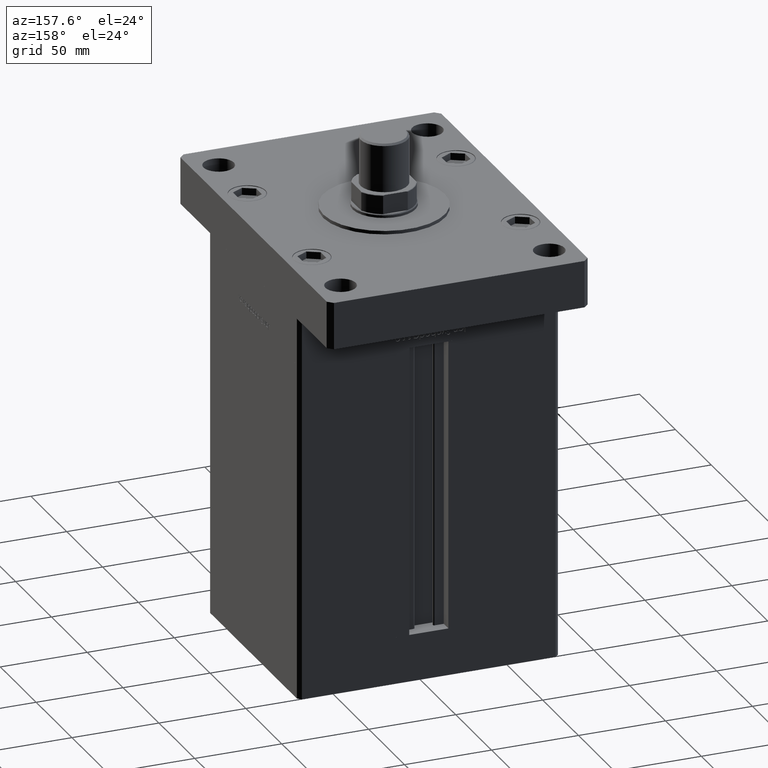
[diagram: clean part render]
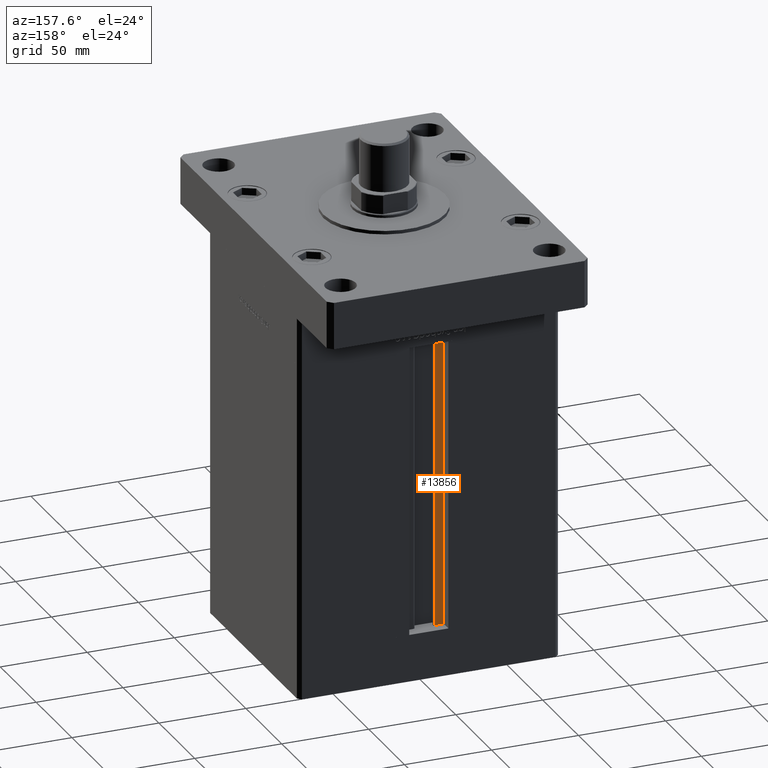
[diagram: same view with one face highlighted and labeled with its STEP entity id]
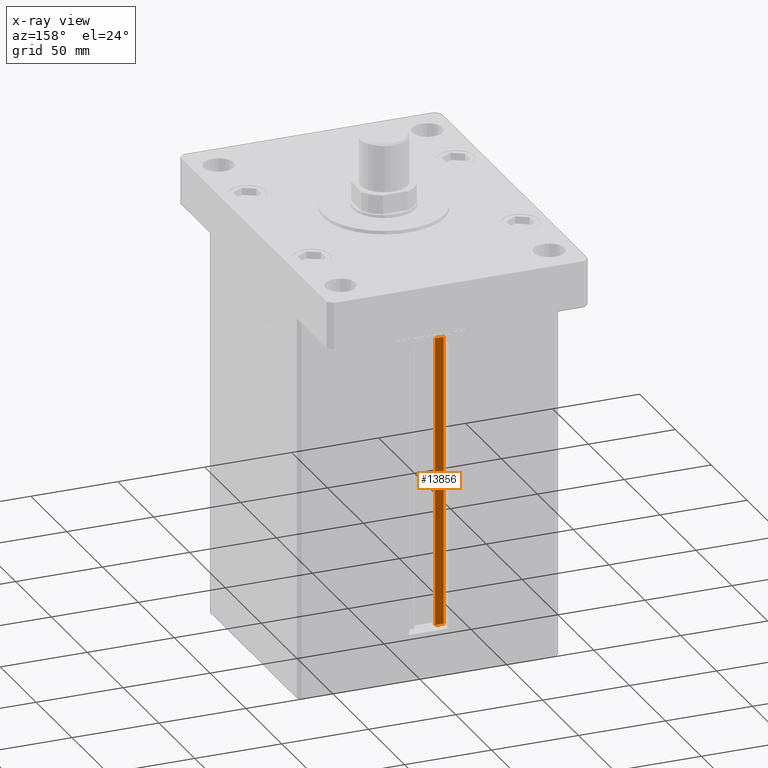
[diagram: x-ray of the same camera — body ghosted, the highlighted face saturated]
A machine part, auxiliary view. The second image highlights one B-rep face of the part: STEP entity #13856.
The next image is the same camera in x-ray: the body ghosted, the highlighted face saturated — about 0% of this face is hidden behind the body in this view.
In plain terms, the highlighted planar face has unit normal (0, -1, 0).
Its self-contained STEP definition (entity closure, byte-faithful):
#318 = FACE_OUTER_BOUND ( 'NONE', #16984, .T. ) ;
#1287 = VERTEX_POINT ( 'NONE', #24215 ) ;
#4076 = EDGE_CURVE ( 'NONE', #1287, #33321, #17249, .T. ) ;
#4215 = CARTESIAN_POINT ( 'NONE',  ( -11.25000000000000178, 55.99999999999999289, 0.000000000000000000 ) ) ;
#6234 = EDGE_CURVE ( 'NONE', #32361, #1287, #12732, .T. ) ;
#12732 = LINE ( 'NONE', #26002, #35676 ) ;
#13647 = AXIS2_PLACEMENT_3D ( 'NONE', #46544, #38532, #25765 ) ;
#13856 = ADVANCED_FACE ( 'NONE', ( #318 ), #42949, .F. ) ;
#15830 = VERTEX_POINT ( 'NONE', #4215 ) ;
#16984 = EDGE_LOOP ( 'NONE', ( #19637, #43278, #18100, #35774 ) ) ;
#17249 = LINE ( 'NONE', #34131, #46192 ) ;
#18100 = ORIENTED_EDGE ( 'NONE', *, *, #50372, .T. ) ;
#19637 = ORIENTED_EDGE ( 'NONE', *, *, #6234, .F. ) ;
#22715 = LINE ( 'NONE', #39632, #30277 ) ;
#23885 = DIRECTION ( 'NONE',  ( 1.000000000000000000, -0.000000000000000000, -0.000000000000000000 ) ) ;
#24215 = CARTESIAN_POINT ( 'NONE',  ( -6.183333333334002369, 55.99999999999999289, 166.9999999999999432 ) ) ;
#24535 = CARTESIAN_POINT ( 'NONE',  ( -11.25000000000000178, 55.99999999999999289, 166.9999999999999432 ) ) ;
#25765 = DIRECTION ( 'NONE',  ( 0.000000000000000000, 0.000000000000000000, -1.000000000000000000 ) ) ;
#26002 = CARTESIAN_POINT ( 'NONE',  ( -6.183333333334001480, 55.99999999999999289, 0.000000000000000000 ) ) ;
#30277 = VECTOR ( 'NONE', #31302, 1000.000000000000000 ) ;
#31302 = DIRECTION ( 'NONE',  ( -0.000000000000000000, -0.000000000000000000, 1.000000000000000000 ) ) ;
#31652 = CARTESIAN_POINT ( 'NONE',  ( -6.183333333334001480, 55.99999999999999289, 0.000000000000000000 ) ) ;
#32361 = VERTEX_POINT ( 'NONE', #47868 ) ;
#33321 = VERTEX_POINT ( 'NONE', #24535 ) ;
#34131 = CARTESIAN_POINT ( 'NONE',  ( 0.000000000000000000, 55.99999999999999289, 167.0000000000000000 ) ) ;
#35530 = LINE ( 'NONE', #31652, #47977 ) ;
#35676 = VECTOR ( 'NONE', #47052, 1000.000000000000000 ) ;
#35774 = ORIENTED_EDGE ( 'NONE', *, *, #4076, .F. ) ;
#38532 = DIRECTION ( 'NONE',  ( 0.000000000000000000, -1.000000000000000000, -0.000000000000000000 ) ) ;
#38580 = DIRECTION ( 'NONE',  ( -1.000000000000000000, 0.000000000000000000, 0.000000000000000000 ) ) ;
#39632 = CARTESIAN_POINT ( 'NONE',  ( -11.25000000000000178, 55.99999999999999289, 0.000000000000000000 ) ) ;
#42949 = PLANE ( 'NONE',  #13647 ) ;
#43278 = ORIENTED_EDGE ( 'NONE', *, *, #51453, .F. ) ;
#46192 = VECTOR ( 'NONE', #38580, 1000.000000000000000 ) ;
#46544 = CARTESIAN_POINT ( 'NONE',  ( -6.183333333334001480, 55.99999999999999289, 0.000000000000000000 ) ) ;
#47052 = DIRECTION ( 'NONE',  ( -0.000000000000000000, -0.000000000000000000, 1.000000000000000000 ) ) ;
#47868 = CARTESIAN_POINT ( 'NONE',  ( -6.183333333334001480, 55.99999999999999289, 0.000000000000000000 ) ) ;
#47977 = VECTOR ( 'NONE', #23885, 1000.000000000000000 ) ;
#50372 = EDGE_CURVE ( 'NONE', #15830, #33321, #22715, .T. ) ;
#51453 = EDGE_CURVE ( 'NONE', #15830, #32361, #35530, .T. ) ;